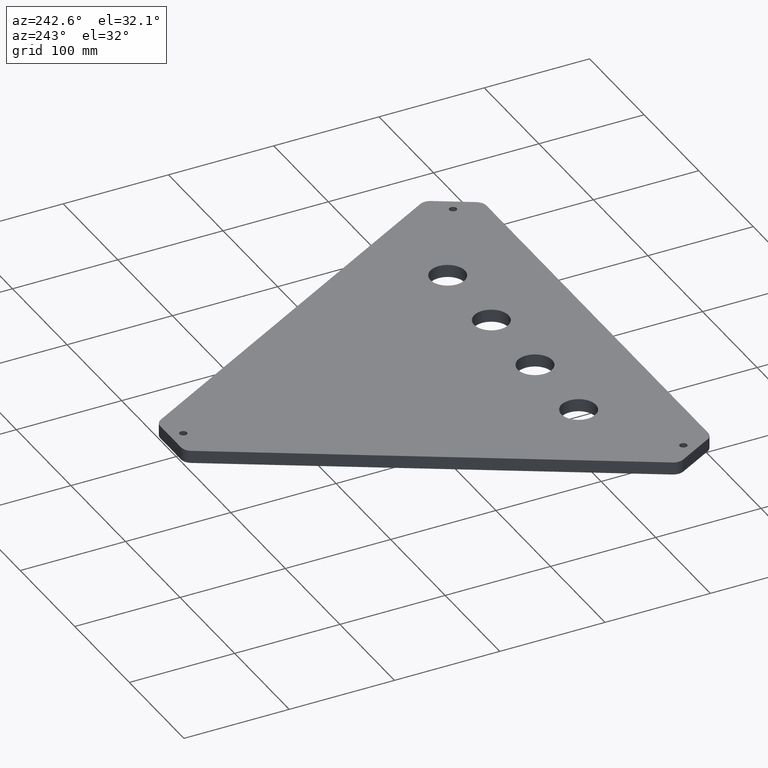
[diagram: clean part render]
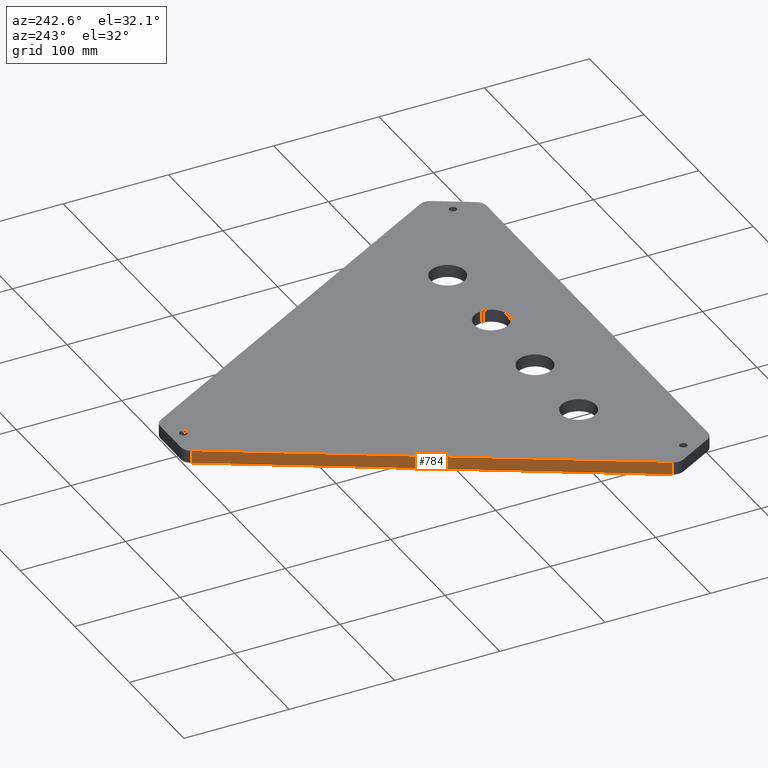
[diagram: same view with one face highlighted and labeled with its STEP entity id]
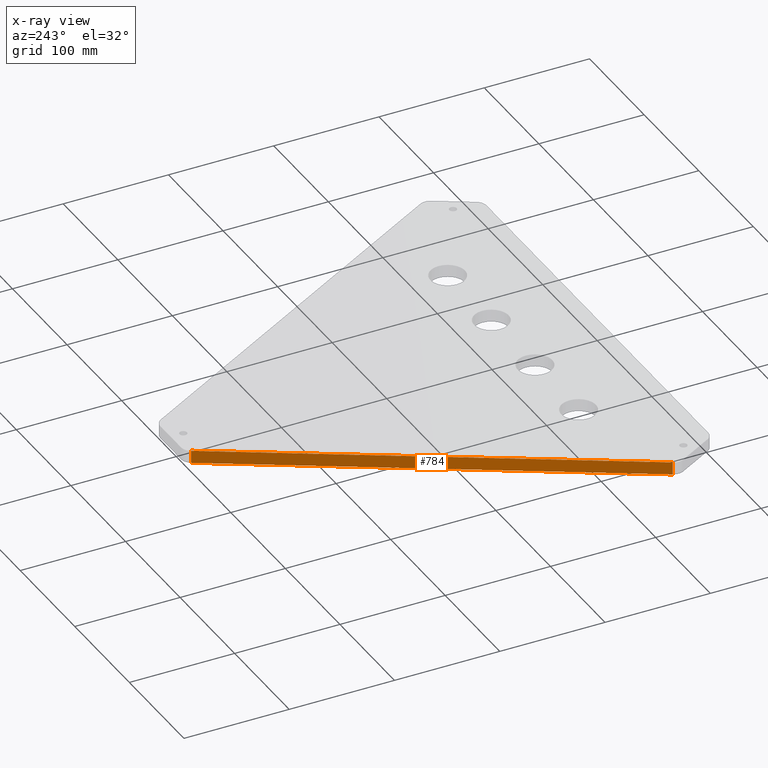
[diagram: x-ray of the same camera — body ghosted, the highlighted face saturated]
A machine part, auxiliary view. The second image highlights one B-rep face of the part: STEP entity #784.
The next image is the same camera in x-ray: the body ghosted, the highlighted face saturated — about 0% of this face is hidden behind the body in this view.
In plain terms, the highlighted planar face has unit normal (0.866, -0.5, 0).
Its self-contained STEP definition (entity closure, byte-faithful):
#37 = EDGE_LOOP ( 'NONE', ( #540, #741, #901, #512 ) ) ;
#81 = DIRECTION ( 'NONE',  ( 0.8660254037844366000, -0.5000000000000037700, 0.0000000000000000000 ) ) ;
#165 = FACE_OUTER_BOUND ( 'NONE', #37, .T. ) ;
#192 = CARTESIAN_POINT ( 'NONE',  ( -231.1132486540533100, 48.30127018922121400, 0.0000000000000000000 ) ) ;
#272 = VECTOR ( 'NONE', #561, 1000.000000000000100 ) ;
#281 = EDGE_CURVE ( 'NONE', #712, #594, #359, .T. ) ;
#285 = EDGE_CURVE ( 'NONE', #712, #544, #303, .T. ) ;
#301 = LINE ( 'NONE', #577, #460 ) ;
#303 = LINE ( 'NONE', #590, #272 ) ;
#318 = AXIS2_PLACEMENT_3D ( 'NONE', #1022, #81, #945 ) ;
#325 = EDGE_CURVE ( 'NONE', #619, #544, #301, .T. ) ;
#336 = EDGE_CURVE ( 'NONE', #594, #619, #454, .T. ) ;
#359 = LINE ( 'NONE', #638, #993 ) ;
#397 = CARTESIAN_POINT ( 'NONE',  ( -27.88675134594825900, 400.2998889711154200, 12.00000000000000000 ) ) ;
#425 = CARTESIAN_POINT ( 'NONE',  ( -234.0000000000015900, 43.30127018922097900, 0.0000000000000000000 ) ) ;
#434 = PLANE ( 'NONE',  #318 ) ;
#440 = DIRECTION ( 'NONE',  ( -0.5000000000000036600, -0.8660254037844366000, -0.0000000000000000000 ) ) ;
#454 = LINE ( 'NONE', #425, #455 ) ;
#455 = VECTOR ( 'NONE', #440, 1000.000000000000100 ) ;
#460 = VECTOR ( 'NONE', #501, 1000.000000000000000 ) ;
#501 = DIRECTION ( 'NONE',  ( -0.0000000000000000000, -0.0000000000000000000, 1.000000000000000000 ) ) ;
#512 = ORIENTED_EDGE ( 'NONE', *, *, #281, .T. ) ;
#517 = CARTESIAN_POINT ( 'NONE',  ( -27.88675134594825900, 400.2998889711154200, 0.0000000000000000000 ) ) ;
#540 = ORIENTED_EDGE ( 'NONE', *, *, #336, .T. ) ;
#544 = VERTEX_POINT ( 'NONE', #826 ) ;
#561 = DIRECTION ( 'NONE',  ( -0.5000000000000036600, -0.8660254037844366000, -0.0000000000000000000 ) ) ;
#577 = CARTESIAN_POINT ( 'NONE',  ( -231.1132486540533100, 48.30127018922121400, 12.00000000000000000 ) ) ;
#590 = CARTESIAN_POINT ( 'NONE',  ( -234.0000000000015900, 43.30127018922097900, 12.00000000000000000 ) ) ;
#594 = VERTEX_POINT ( 'NONE', #517 ) ;
#619 = VERTEX_POINT ( 'NONE', #192 ) ;
#638 = CARTESIAN_POINT ( 'NONE',  ( -27.88675134594823000, 400.2998889711154200, 12.00000000000000000 ) ) ;
#641 = DIRECTION ( 'NONE',  ( 0.0000000000000000000, 0.0000000000000000000, -1.000000000000000000 ) ) ;
#712 = VERTEX_POINT ( 'NONE', #397 ) ;
#741 = ORIENTED_EDGE ( 'NONE', *, *, #325, .T. ) ;
#784 = ADVANCED_FACE ( 'NONE', ( #165 ), #434, .F. ) ;
#826 = CARTESIAN_POINT ( 'NONE',  ( -231.1132486540533100, 48.30127018922121400, 12.00000000000000000 ) ) ;
#901 = ORIENTED_EDGE ( 'NONE', *, *, #285, .F. ) ;
#945 = DIRECTION ( 'NONE',  ( 0.5000000000000036600, 0.8660254037844364900, 0.0000000000000000000 ) ) ;
#993 = VECTOR ( 'NONE', #641, 1000.000000000000000 ) ;
#1022 = CARTESIAN_POINT ( 'NONE',  ( -234.0000000000015900, 43.30127018922097900, 12.00000000000000000 ) ) ;